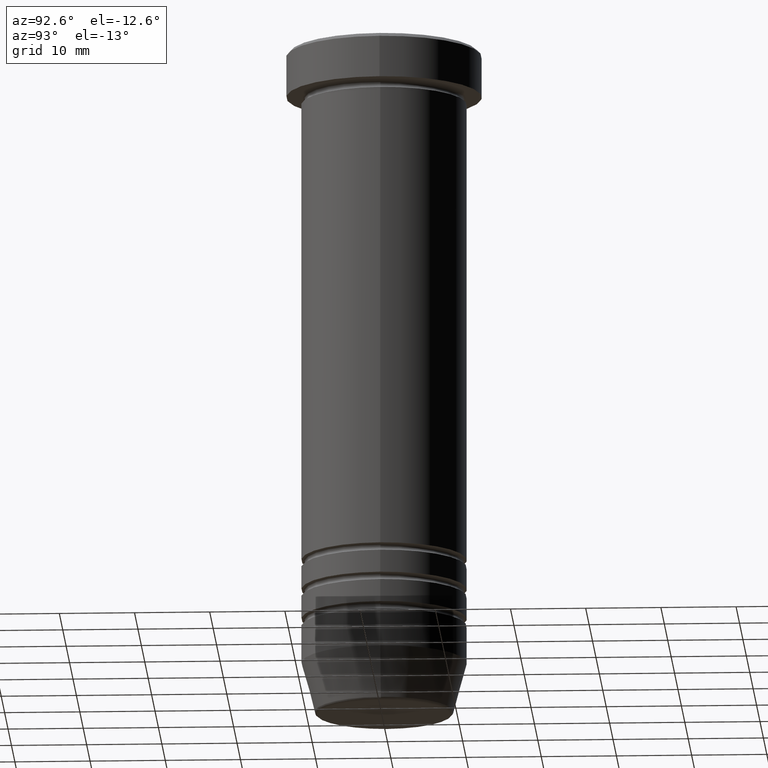
[diagram: clean part render]
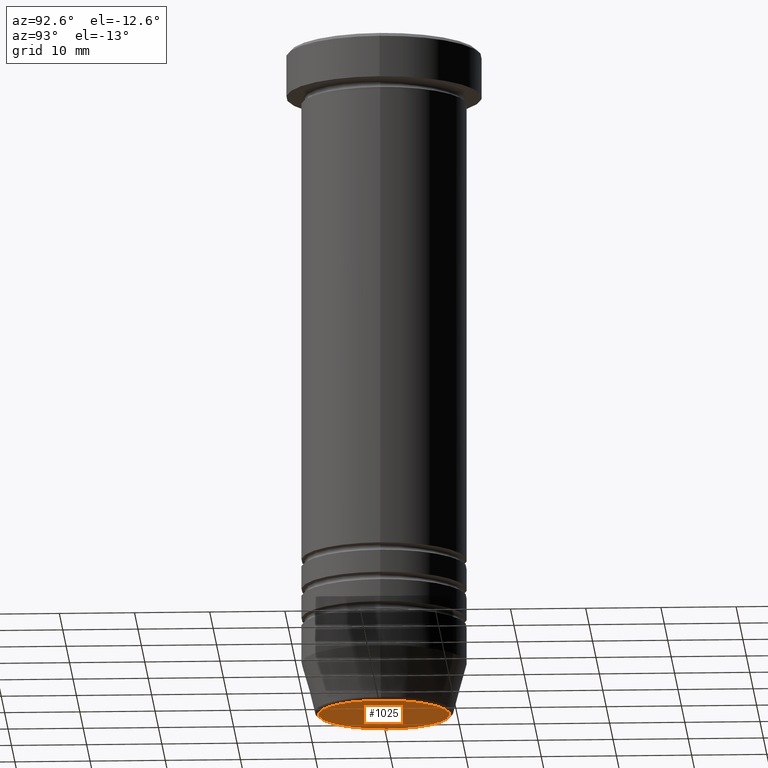
[diagram: same view with one face highlighted and labeled with its STEP entity id]
A machine part, auxiliary view. The second image highlights one B-rep face of the part: STEP entity #1025.
In plain terms, the highlighted planar face has unit normal (0, -0, 1).
Its self-contained STEP definition (entity closure, byte-faithful):
#51 = AXIS2_PLACEMENT_3D ( 'NONE', #63, #212, #129 ) ;
#63 = CARTESIAN_POINT ( 'NONE',  ( 0.000000000000000000, 4.898587196589412237E-15, -90.00000000000000000 ) ) ;
#108 = VERTEX_POINT ( 'NONE', #700 ) ;
#129 = DIRECTION ( 'NONE',  ( 1.000000000000000000, 0.000000000000000000, 0.000000000000000000 ) ) ;
#131 = DIRECTION ( 'NONE',  ( 0.000000000000000000, 0.000000000000000000, -1.000000000000000000 ) ) ;
#186 = ORIENTED_EDGE ( 'NONE', *, *, #485, .T. ) ;
#204 = CARTESIAN_POINT ( 'NONE',  ( 0.000000000000000000, 0.000000000000000000, -90.00000000000000000 ) ) ;
#212 = DIRECTION ( 'NONE',  ( 0.000000000000000000, -0.000000000000000000, 1.000000000000000000 ) ) ;
#335 = EDGE_CURVE ( 'NONE', #108, #367, #959, .T. ) ;
#339 = ORIENTED_EDGE ( 'NONE', *, *, #335, .T. ) ;
#367 = VERTEX_POINT ( 'NONE', #431 ) ;
#379 = PLANE ( 'NONE',  #51 ) ;
#431 = CARTESIAN_POINT ( 'NONE',  ( 8.740692158992652949, 0.000000000000000000, -90.00000000000000000 ) ) ;
#485 = EDGE_CURVE ( 'NONE', #367, #108, #847, .T. ) ;
#496 = CARTESIAN_POINT ( 'NONE',  ( 0.000000000000000000, 0.000000000000000000, -90.00000000000000000 ) ) ;
#543 = FACE_OUTER_BOUND ( 'NONE', #843, .T. ) ;
#662 = DIRECTION ( 'NONE',  ( 0.000000000000000000, 0.000000000000000000, -1.000000000000000000 ) ) ;
#700 = CARTESIAN_POINT ( 'NONE',  ( -8.740692158992652949, 1.099999016768739259E-15, -90.00000000000000000 ) ) ;
#722 = AXIS2_PLACEMENT_3D ( 'NONE', #204, #131, #788 ) ;
#788 = DIRECTION ( 'NONE',  ( 1.000000000000000000, 0.000000000000000000, 0.000000000000000000 ) ) ;
#818 = DIRECTION ( 'NONE',  ( 1.000000000000000000, 0.000000000000000000, 0.000000000000000000 ) ) ;
#843 = EDGE_LOOP ( 'NONE', ( #186, #339 ) ) ;
#847 = CIRCLE ( 'NONE', #722, 8.740692158992652949 ) ;
#959 = CIRCLE ( 'NONE', #1048, 8.740692158992652949 ) ;
#1025 = ADVANCED_FACE ( 'NONE', ( #543 ), #379, .F. ) ;
#1048 = AXIS2_PLACEMENT_3D ( 'NONE', #496, #662, #818 ) ;